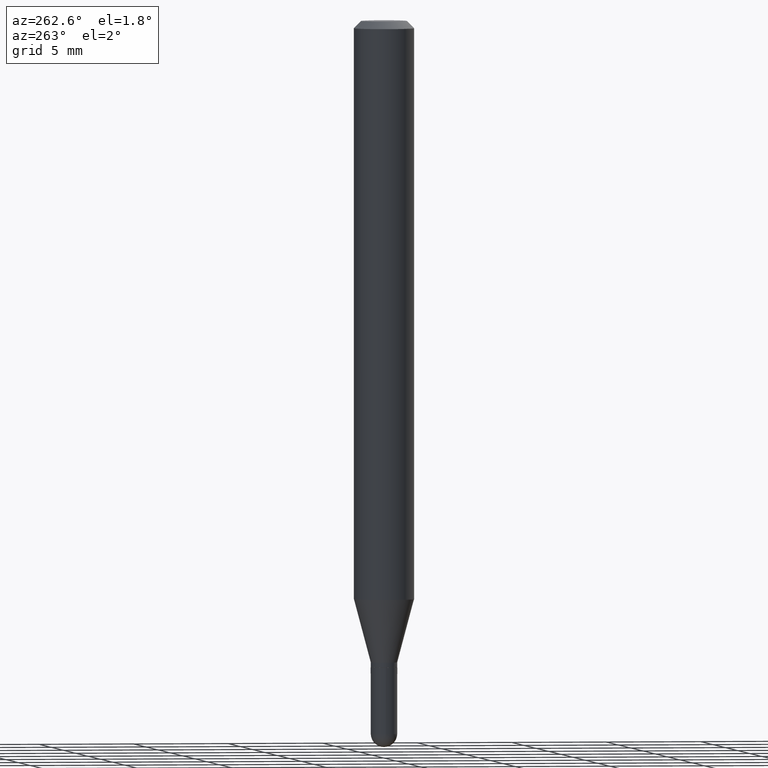
[diagram: clean part render]
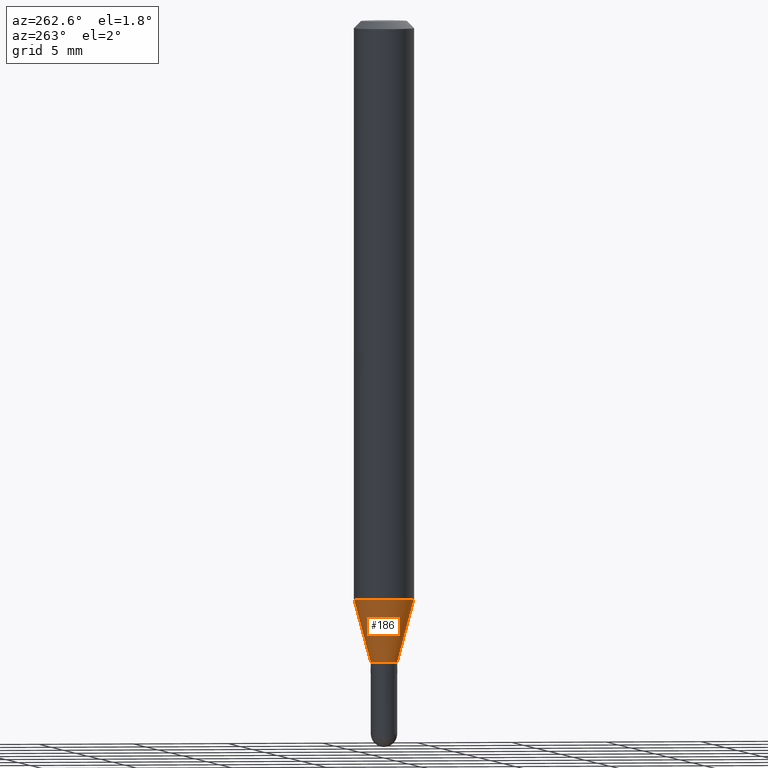
[diagram: same view with one face highlighted and labeled with its STEP entity id]
A machine part, auxiliary view. The second image highlights one B-rep face of the part: STEP entity #186.
In plain terms, the highlighted conical surface has half-angle 15 deg.
Its self-contained STEP definition (entity closure, byte-faithful):
#31 = DIRECTION ( 'NONE',  ( 1.839019923739605048E-15, 0.2588190451025256245, 0.9659258262890669799 ) ) ;
#42 = ORIENTED_EDGE ( 'NONE', *, *, #410, .T. ) ;
#49 = LINE ( 'NONE', #51, #285 ) ;
#51 = CARTESIAN_POINT ( 'NONE',  ( -1.920314736363393602E-16, -0.02750000000000454858, -1.325000000000000400 ) ) ;
#63 = DIRECTION ( 'NONE',  ( -6.982962677686265922E-15, -1.000000000000000000, 0.000000000000000000 ) ) ;
#69 = DIRECTION ( 'NONE',  ( -2.445471613595686060E-29, 3.491477318471450825E-15, 1.000000000000000000 ) ) ;
#97 = EDGE_CURVE ( 'NONE', #371, #273, #49, .T. ) ;
#107 = AXIS2_PLACEMENT_3D ( 'NONE', #191, #69, #63 ) ;
#139 = DIRECTION ( 'NONE',  ( -2.445471613595686060E-29, 3.491477318471450825E-15, 1.000000000000000000 ) ) ;
#155 = CARTESIAN_POINT ( 'NONE',  ( 1.953992523340593531E-16, 0.02749999999999529210, -1.325000000000000400 ) ) ;
#173 = DIRECTION ( 'NONE',  ( -6.982962677686265922E-15, -1.000000000000000000, 4.370956789862821150E-15 ) ) ;
#186 = ADVANCED_FACE ( 'NONE', ( #466 ), #461, .T. ) ;
#191 = CARTESIAN_POINT ( 'NONE',  ( 3.240249888014285312E-29, -4.626207446974673812E-15, -1.325000000000000400 ) ) ;
#192 = EDGE_CURVE ( 'NONE', #484, #273, #219, .T. ) ;
#218 = CARTESIAN_POINT ( 'NONE',  ( -4.364351673553625802E-16, -0.06250000000000419109, -1.194378221735090007 ) ) ;
#219 = CIRCLE ( 'NONE', #413, 0.06250000000000000000 ) ;
#221 = LINE ( 'NONE', #155, #309 ) ;
#225 = CIRCLE ( 'NONE', #107, 0.02749999999999992034 ) ;
#237 = DIRECTION ( 'NONE',  ( -2.445471613595686060E-29, 3.491477318471450825E-15, 1.000000000000000000 ) ) ;
#273 = VERTEX_POINT ( 'NONE', #218 ) ;
#285 = VECTOR ( 'NONE', #312, 39.37007874015748854 ) ;
#297 = AXIS2_PLACEMENT_3D ( 'NONE', #427, #237, #363 ) ;
#309 = VECTOR ( 'NONE', #31, 39.37007874015748143 ) ;
#310 = EDGE_LOOP ( 'NONE', ( #460, #42, #468, #480 ) ) ;
#312 = DIRECTION ( 'NONE',  ( -1.807323732225334872E-15, -0.2588190451025188521, 0.9659258262890687563 ) ) ;
#344 = VERTEX_POINT ( 'NONE', #485 ) ;
#363 = DIRECTION ( 'NONE',  ( -6.982962677686265922E-15, -1.000000000000000000, 0.000000000000000000 ) ) ;
#371 = VERTEX_POINT ( 'NONE', #486 ) ;
#405 = CARTESIAN_POINT ( 'NONE',  ( 2.920818037150057655E-29, -4.170144470864333140E-15, -1.194378221735090229 ) ) ;
#410 = EDGE_CURVE ( 'NONE', #344, #371, #225, .T. ) ;
#413 = AXIS2_PLACEMENT_3D ( 'NONE', #405, #139, #173 ) ;
#427 = CARTESIAN_POINT ( 'NONE',  ( 3.240249888014285312E-29, -4.626207446974673812E-15, -1.325000000000000400 ) ) ;
#431 = EDGE_CURVE ( 'NONE', #344, #484, #221, .T. ) ;
#460 = ORIENTED_EDGE ( 'NONE', *, *, #431, .F. ) ;
#461 = CONICAL_SURFACE ( 'NONE', #297, 0.02749999999999992034, 0.2617993877991509621 ) ;
#466 = FACE_OUTER_BOUND ( 'NONE', #310, .T. ) ;
#468 = ORIENTED_EDGE ( 'NONE', *, *, #97, .T. ) ;
#480 = ORIENTED_EDGE ( 'NONE', *, *, #192, .F. ) ;
#484 = VERTEX_POINT ( 'NONE', #494 ) ;
#485 = CARTESIAN_POINT ( 'NONE',  ( 3.197442310920756402E-16, 0.02749999999999529210, -1.325000000000000400 ) ) ;
#486 = CARTESIAN_POINT ( 'NONE',  ( -1.920314736363393602E-16, -0.02750000000000454858, -1.325000000000000400 ) ) ;
#494 = CARTESIAN_POINT ( 'NONE',  ( 4.440892098500915082E-16, 0.06249999999999580891, -1.194378221735090451 ) ) ;